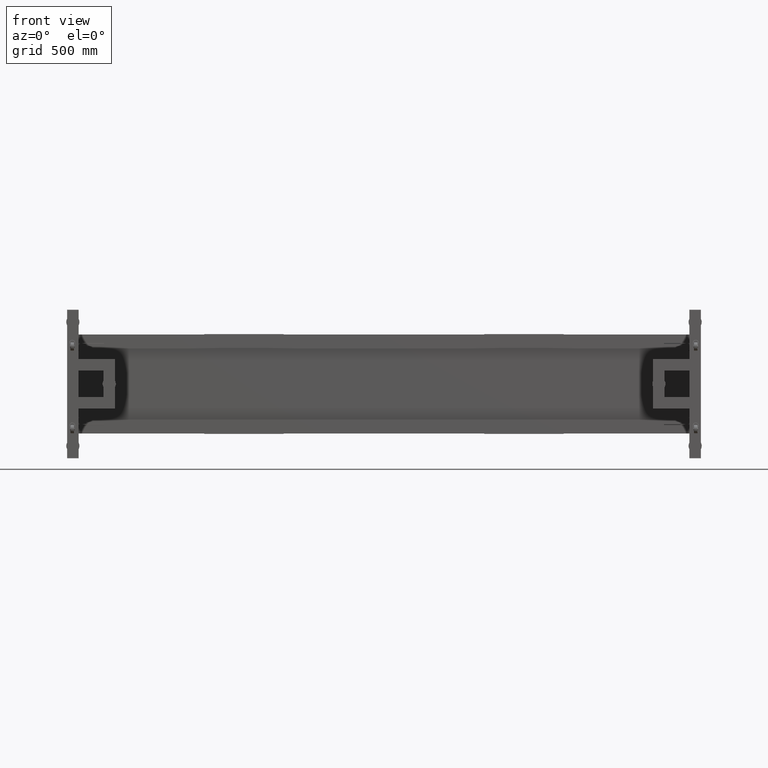
[diagram: clean part render]
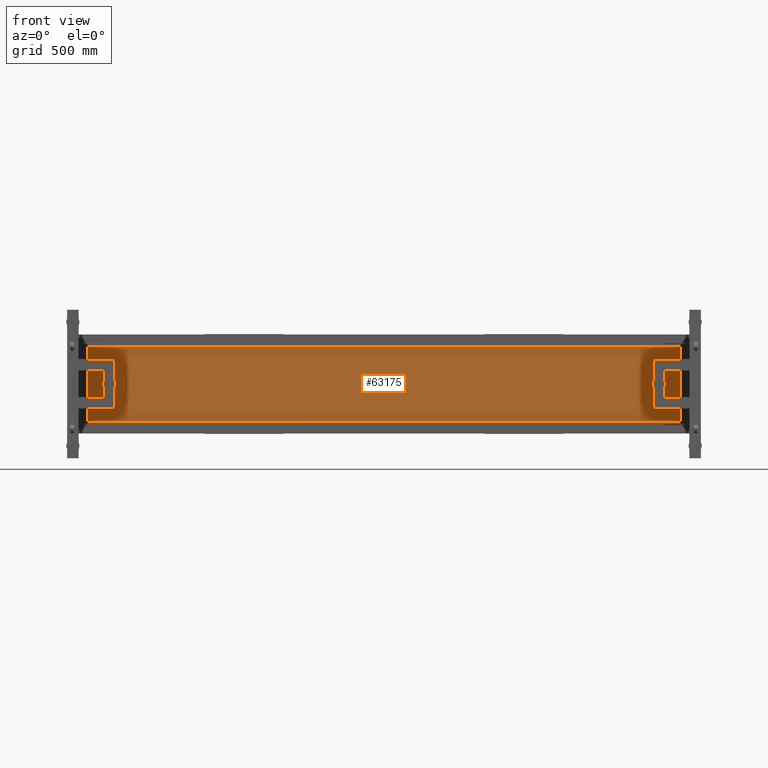
[diagram: same view with one face highlighted and labeled with its STEP entity id]
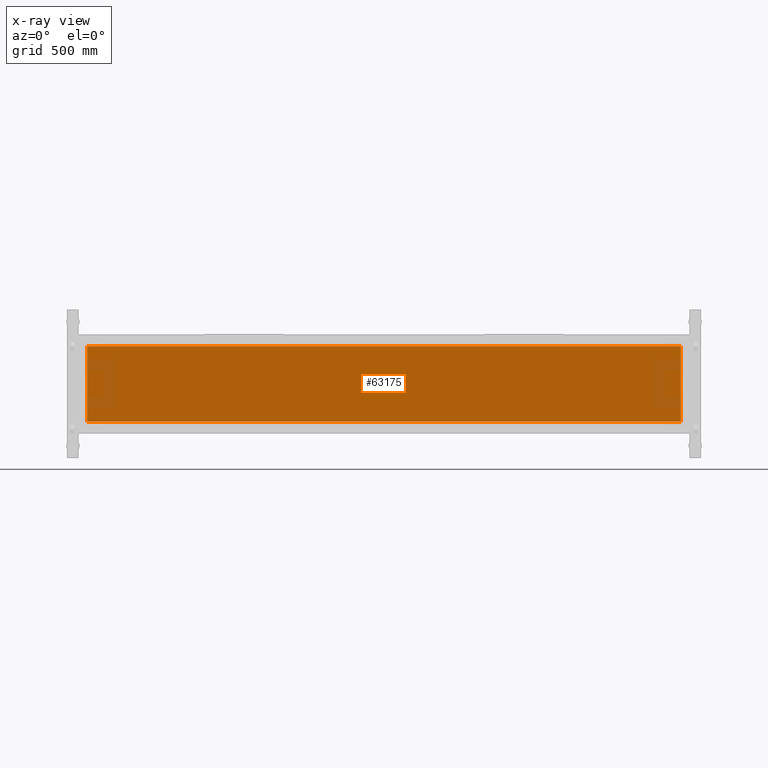
[diagram: x-ray of the same camera — body ghosted, the highlighted face saturated]
A machine part, front view. The second image highlights one B-rep face of the part: STEP entity #63175.
The next image is the same camera in x-ray: the body ghosted, the highlighted face saturated — about 4% of this face is hidden behind the body in this view.
In plain terms, the highlighted planar face has unit normal (-0, 1, -0).
Its self-contained STEP definition (entity closure, byte-faithful):
#847 = CARTESIAN_POINT ( 'NONE',  ( 2380.317512562815864, 555.4410804020127443, -228.4899999999998954 ) ) ;
#1511 = VECTOR ( 'NONE', #13499, 1000.000000000000000 ) ;
#3246 = CARTESIAN_POINT ( 'NONE',  ( 681.8275125628146043, 555.4410804020131991, 1.110223024625156540E-13 ) ) ;
#3250 = VECTOR ( 'NONE', #78398, 1000.000000000000000 ) ;
#5801 = LINE ( 'NONE', #31954, #16612 ) ;
#9805 = EDGE_CURVE ( 'NONE', #40128, #31259, #34982, .T. ) ;
#10937 = VECTOR ( 'NONE', #76155, 1000.000000000000000 ) ;
#11706 = EDGE_LOOP ( 'NONE', ( #34925, #58659, #48601, #56510 ) ) ;
#13499 = DIRECTION ( 'NONE',  ( 1.000000000000000000, 4.543257172554223644E-16, 0.000000000000000000 ) ) ;
#16612 = VECTOR ( 'NONE', #68003, 1000.000000000000000 ) ;
#27391 = DIRECTION ( 'NONE',  ( -4.543257172554225407E-31, 1.000000000000000472E-15, 1.000000000000000000 ) ) ;
#31259 = VERTEX_POINT ( 'NONE', #70169 ) ;
#31954 = CARTESIAN_POINT ( 'NONE',  ( -1216.662487437185973, 555.4410804020124033, -228.4899999999998954 ) ) ;
#34925 = ORIENTED_EDGE ( 'NONE', *, *, #53569, .T. ) ;
#34982 = LINE ( 'NONE', #41539, #3250 ) ;
#40128 = VERTEX_POINT ( 'NONE', #73458 ) ;
#41185 = LINE ( 'NONE', #53884, #1511 ) ;
#41539 = CARTESIAN_POINT ( 'NONE',  ( 1880.317512562814727, 555.4410804020139949, 228.4900000000001228 ) ) ;
#45806 = FACE_OUTER_BOUND ( 'NONE', #11706, .T. ) ;
#48601 = ORIENTED_EDGE ( 'NONE', *, *, #9805, .T. ) ;
#52761 = DIRECTION ( 'NONE',  ( -4.543257172554223644E-16, 1.000000000000000000, -1.000000000000000472E-15 ) ) ;
#53569 = EDGE_CURVE ( 'NONE', #59843, #55908, #41185, .T. ) ;
#53884 = CARTESIAN_POINT ( 'NONE',  ( -516.6624874371852911, 555.4410804020124033, -228.4899999999998954 ) ) ;
#55908 = VERTEX_POINT ( 'NONE', #847 ) ;
#56510 = ORIENTED_EDGE ( 'NONE', *, *, #61531, .F. ) ;
#57671 = PLANE ( 'NONE',  #61220 ) ;
#58659 = ORIENTED_EDGE ( 'NONE', *, *, #68142, .T. ) ;
#59384 = CARTESIAN_POINT ( 'NONE',  ( 2380.317512562815864, 555.4410804020127443, -228.4899999999998954 ) ) ;
#59843 = VERTEX_POINT ( 'NONE', #70585 ) ;
#61220 = AXIS2_PLACEMENT_3D ( 'NONE', #3246, #52761, #27391 ) ;
#61531 = EDGE_CURVE ( 'NONE', #59843, #31259, #5801, .T. ) ;
#63175 = ADVANCED_FACE ( 'NONE', ( #45806 ), #57671, .F. ) ;
#68003 = DIRECTION ( 'NONE',  ( 0.000000000000000000, 1.000000000000000472E-15, 1.000000000000000000 ) ) ;
#68142 = EDGE_CURVE ( 'NONE', #55908, #40128, #77797, .T. ) ;
#70169 = CARTESIAN_POINT ( 'NONE',  ( -1216.662487437185973, 555.4410804020128580, 228.4900000000081093 ) ) ;
#70585 = CARTESIAN_POINT ( 'NONE',  ( -1216.662487437185973, 555.4410804020124033, -228.4899999999998954 ) ) ;
#73458 = CARTESIAN_POINT ( 'NONE',  ( 2380.317512562815864, 555.4410804020131991, 228.4900000000081093 ) ) ;
#76155 = DIRECTION ( 'NONE',  ( -2.216956027235895584E-31, 1.000000000000000472E-15, 1.000000000000000000 ) ) ;
#77797 = LINE ( 'NONE', #59384, #10937 ) ;
#78398 = DIRECTION ( 'NONE',  ( -1.000000000000000000, -4.543257172554223644E-16, 0.000000000000000000 ) ) ;